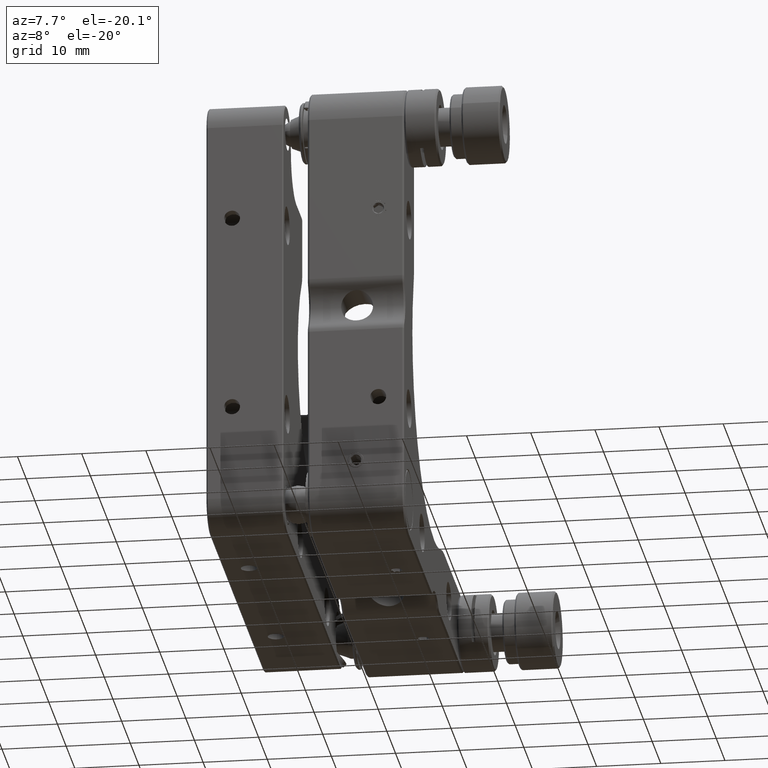
[diagram: clean part render]
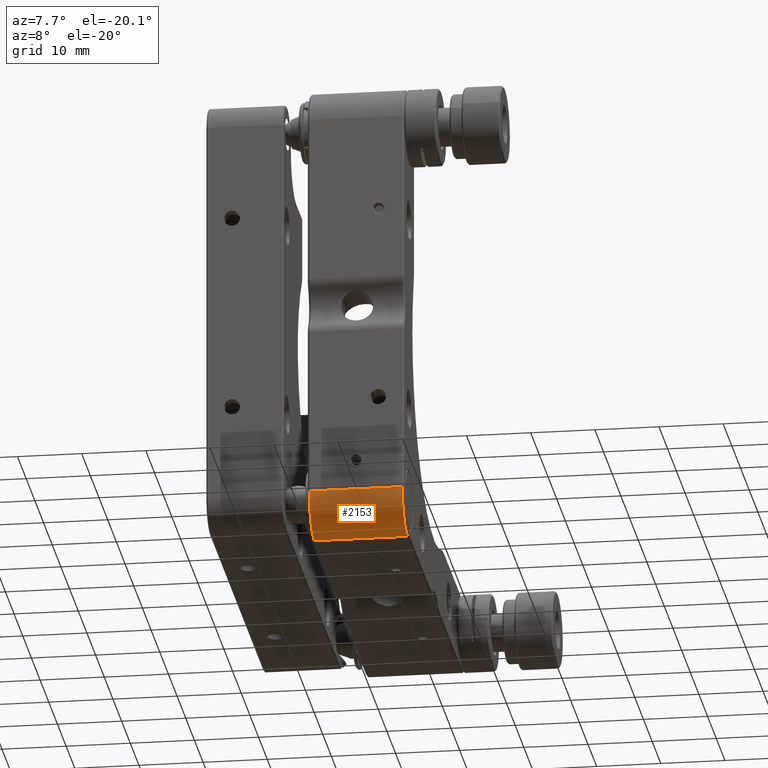
[diagram: same view with one face highlighted and labeled with its STEP entity id]
A machine part, auxiliary view. The second image highlights one B-rep face of the part: STEP entity #2153.
In plain terms, the highlighted cylindrical surface (partial cylindrical patch) has radius 6 mm, axis along (-1, 0, 0).
Its self-contained STEP definition (entity closure, byte-faithful):
#906 = CARTESIAN_POINT ( 'NONE',  ( 14.52438067708579972, -31.81707137695323340, 21.50000000000000000 ) ) ;
#959 = LINE ( 'NONE', #5738, #3655 ) ;
#1155 = AXIS2_PLACEMENT_3D ( 'NONE', #10527, #11625, #14149 ) ;
#1454 = EDGE_CURVE ( 'NONE', #6960, #2723, #7363, .T. ) ;
#1550 = AXIS2_PLACEMENT_3D ( 'NONE', #906, #3022, #11638 ) ;
#2153 = ADVANCED_FACE ( 'NONE', ( #4280 ), #3173, .T. ) ;
#2287 = EDGE_LOOP ( 'NONE', ( #13963, #8350, #8005, #4618 ) ) ;
#2605 = AXIS2_PLACEMENT_3D ( 'NONE', #13103, #4480, #9321 ) ;
#2723 = VERTEX_POINT ( 'NONE', #10748 ) ;
#3022 = DIRECTION ( 'NONE',  ( -1.000000000000000000, 0.000000000000000000, 0.000000000000000000 ) ) ;
#3173 = CYLINDRICAL_SURFACE ( 'NONE', #1550, 5.999999999999998224 ) ;
#3586 = CARTESIAN_POINT ( 'NONE',  ( 14.52438067708579972, -31.81707137695323340, 15.50000000000000000 ) ) ;
#3655 = VECTOR ( 'NONE', #4569, 1000.000000000000000 ) ;
#3662 = EDGE_CURVE ( 'NONE', #10547, #2723, #9386, .T. ) ;
#4280 = FACE_OUTER_BOUND ( 'NONE', #2287, .T. ) ;
#4480 = DIRECTION ( 'NONE',  ( 1.000000000000000000, 0.000000000000000000, 0.000000000000000000 ) ) ;
#4569 = DIRECTION ( 'NONE',  ( 1.000000000000000000, -0.000000000000000000, -0.000000000000000000 ) ) ;
#4618 = ORIENTED_EDGE ( 'NONE', *, *, #15073, .T. ) ;
#5738 = CARTESIAN_POINT ( 'NONE',  ( 14.52438067708579972, -37.81707137695322274, 21.49999999999999289 ) ) ;
#6960 = VERTEX_POINT ( 'NONE', #11805 ) ;
#7363 = CIRCLE ( 'NONE', #2605, 6.000000000000000000 ) ;
#8005 = ORIENTED_EDGE ( 'NONE', *, *, #3662, .F. ) ;
#8350 = ORIENTED_EDGE ( 'NONE', *, *, #1454, .T. ) ;
#9321 = DIRECTION ( 'NONE',  ( 0.000000000000000000, 0.000000000000000000, -1.000000000000000000 ) ) ;
#9386 = LINE ( 'NONE', #3586, #12622 ) ;
#10496 = CARTESIAN_POINT ( 'NONE',  ( 14.27438067708578728, -37.81707137695322274, 21.49999999999999289 ) ) ;
#10527 = CARTESIAN_POINT ( 'NONE',  ( 14.27438067708578728, -31.81707137695323340, 21.50000000000000000 ) ) ;
#10547 = VERTEX_POINT ( 'NONE', #12939 ) ;
#10748 = CARTESIAN_POINT ( 'NONE',  ( -0.2256193229141847945, -31.81707137695323340, 15.50000000000000000 ) ) ;
#11625 = DIRECTION ( 'NONE',  ( -1.000000000000000000, 0.000000000000000000, 0.000000000000000000 ) ) ;
#11638 = DIRECTION ( 'NONE',  ( 0.000000000000000000, 0.000000000000000000, 1.000000000000000000 ) ) ;
#11805 = CARTESIAN_POINT ( 'NONE',  ( -0.2256193229141847945, -37.81707137695322274, 21.49999999999999289 ) ) ;
#12582 = VERTEX_POINT ( 'NONE', #10496 ) ;
#12622 = VECTOR ( 'NONE', #13096, 1000.000000000000000 ) ;
#12939 = CARTESIAN_POINT ( 'NONE',  ( 14.27438067708578728, -31.81707137695323340, 15.50000000000000000 ) ) ;
#13096 = DIRECTION ( 'NONE',  ( -1.000000000000000000, 0.000000000000000000, 0.000000000000000000 ) ) ;
#13103 = CARTESIAN_POINT ( 'NONE',  ( -0.2256193229141847945, -31.81707137695323340, 21.50000000000000000 ) ) ;
#13443 = EDGE_CURVE ( 'NONE', #6960, #12582, #959, .T. ) ;
#13963 = ORIENTED_EDGE ( 'NONE', *, *, #13443, .F. ) ;
#14149 = DIRECTION ( 'NONE',  ( 0.000000000000000000, 0.000000000000000000, -1.000000000000000000 ) ) ;
#14401 = CIRCLE ( 'NONE', #1155, 6.000000000000000000 ) ;
#15073 = EDGE_CURVE ( 'NONE', #10547, #12582, #14401, .T. ) ;